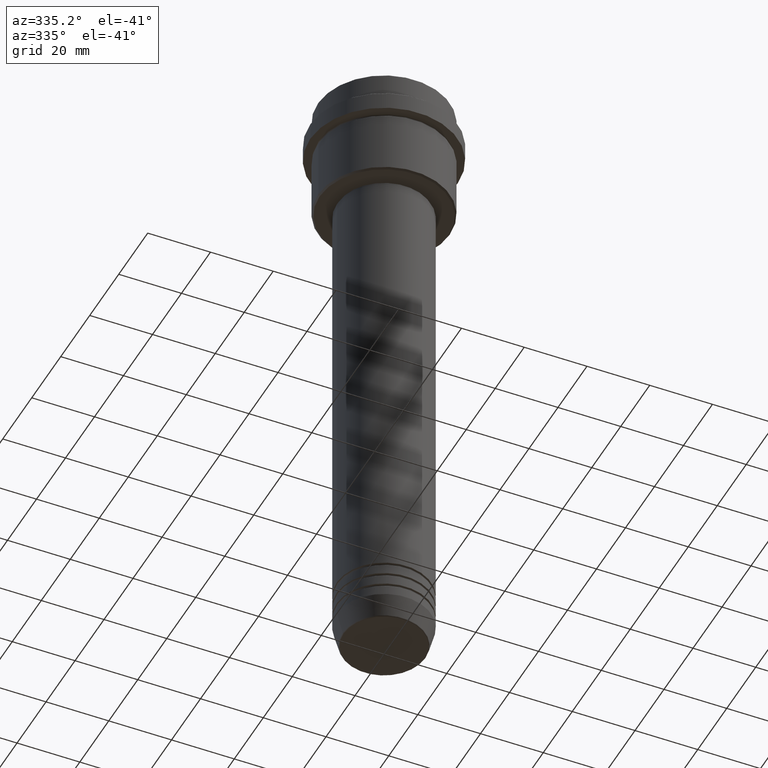
[diagram: clean part render]
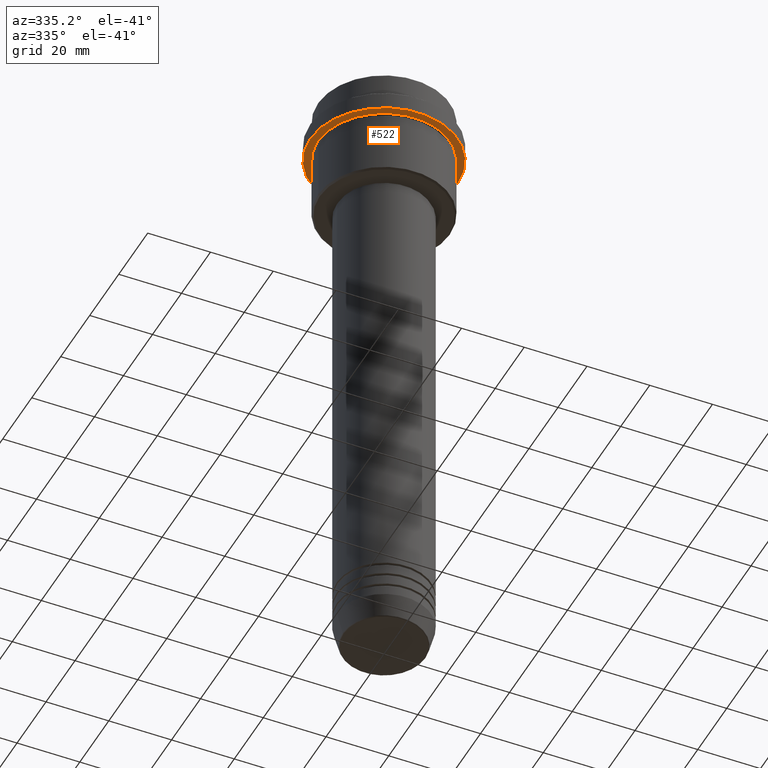
[diagram: same view with one face highlighted and labeled with its STEP entity id]
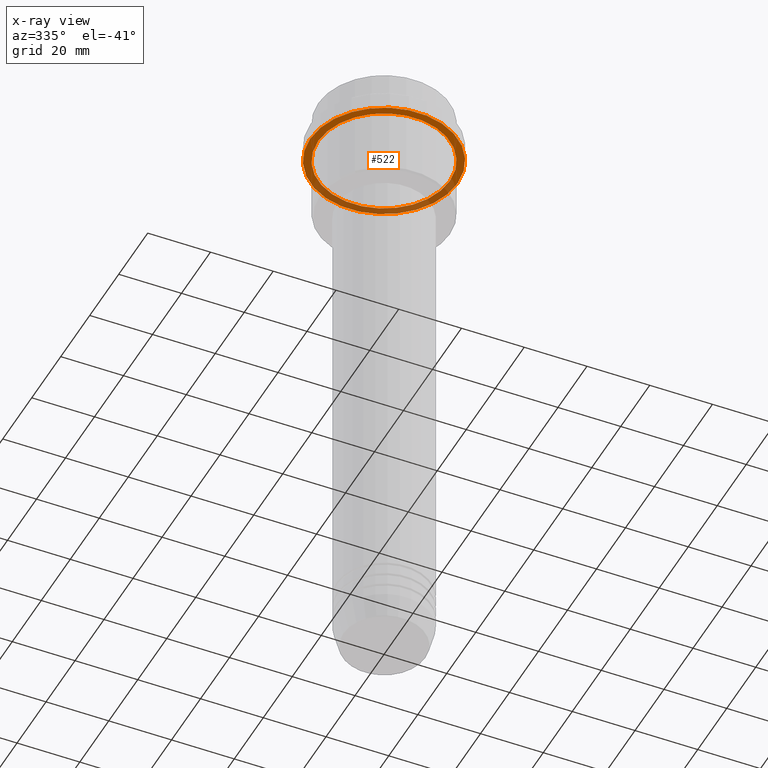
[diagram: x-ray of the same camera — body ghosted, the highlighted face saturated]
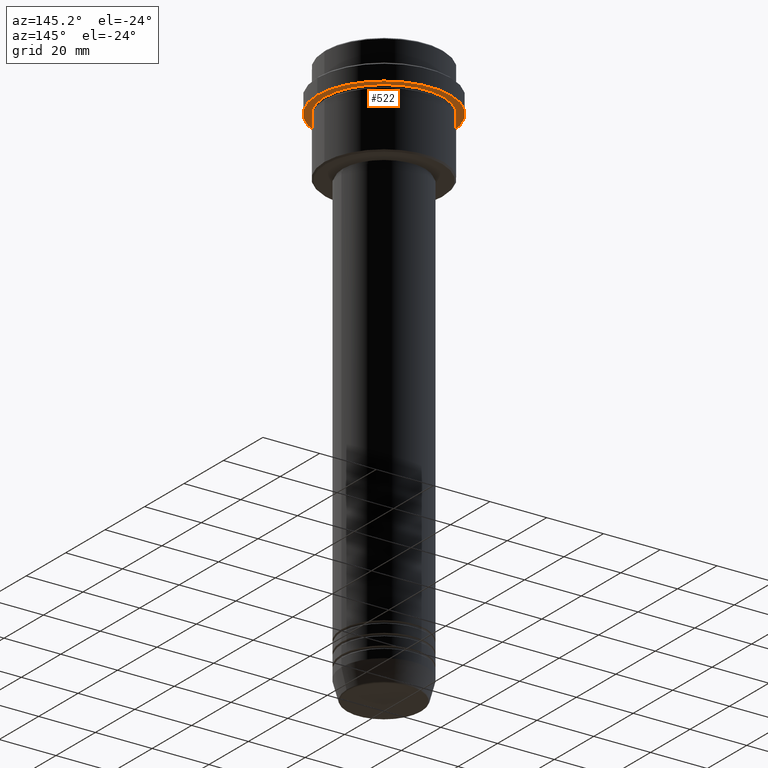
[diagram: same view with one face highlighted and labeled with its STEP entity id]
A machine part, auxiliary view. The second image highlights one B-rep face of the part: STEP entity #522.
The next image is the same camera in x-ray: the body ghosted, the highlighted face saturated — about 36% of this face is hidden behind the body in this view.
A second angle (auxiliary view) of the same face is appended — the face is thin or edge-on in the first view.
In plain terms, the highlighted planar face has unit normal (0, 0, -1).
Its self-contained STEP definition (entity closure, byte-faithful):
#60 = VERTEX_POINT ( 'NONE', #66 ) ;
#66 = CARTESIAN_POINT ( 'NONE',  ( -20.99999999999999289, 0.000000000000000000, -15.00000000000000178 ) ) ;
#109 = VERTEX_POINT ( 'NONE', #369 ) ;
#123 = FACE_OUTER_BOUND ( 'NONE', #1217, .T. ) ;
#190 = DIRECTION ( 'NONE',  ( -1.000000000000000000, 0.000000000000000000, 0.000000000000000000 ) ) ;
#203 = DIRECTION ( 'NONE',  ( -1.000000000000000000, 0.000000000000000000, 0.000000000000000000 ) ) ;
#226 = EDGE_LOOP ( 'NONE', ( #801, #445 ) ) ;
#228 = DIRECTION ( 'NONE',  ( 1.000000000000000000, 0.000000000000000000, 0.000000000000000000 ) ) ;
#272 = CIRCLE ( 'NONE', #692, 20.99999999999999289 ) ;
#359 = AXIS2_PLACEMENT_3D ( 'NONE', #695, #1134, #564 ) ;
#369 = CARTESIAN_POINT ( 'NONE',  ( 20.99999999999999289, 2.571758278209440872E-15, -15.00000000000000178 ) ) ;
#375 = ORIENTED_EDGE ( 'NONE', *, *, #1289, .F. ) ;
#445 = ORIENTED_EDGE ( 'NONE', *, *, #1157, .T. ) ;
#491 = VERTEX_POINT ( 'NONE', #1024 ) ;
#510 = CIRCLE ( 'NONE', #1086, 20.99999999999999289 ) ;
#522 = ADVANCED_FACE ( 'NONE', ( #806, #123 ), #1004, .T. ) ;
#564 = DIRECTION ( 'NONE',  ( -1.000000000000000000, 0.000000000000000000, -0.000000000000000000 ) ) ;
#591 = CARTESIAN_POINT ( 'NONE',  ( -23.50000000000000711, 2.877919977996281109E-15, -15.00000000000000000 ) ) ;
#636 = DIRECTION ( 'NONE',  ( -0.000000000000000000, -0.000000000000000000, 1.000000000000000000 ) ) ;
#638 = EDGE_CURVE ( 'NONE', #60, #109, #510, .T. ) ;
#644 = AXIS2_PLACEMENT_3D ( 'NONE', #964, #636, #867 ) ;
#692 = AXIS2_PLACEMENT_3D ( 'NONE', #1303, #981, #203 ) ;
#695 = CARTESIAN_POINT ( 'NONE',  ( 0.000000000000000000, 23.50000000000000355, -15.00000000000000178 ) ) ;
#755 = CARTESIAN_POINT ( 'NONE',  ( 0.000000000000000000, 0.000000000000000000, -15.00000000000000000 ) ) ;
#801 = ORIENTED_EDGE ( 'NONE', *, *, #638, .T. ) ;
#806 = FACE_BOUND ( 'NONE', #226, .T. ) ;
#835 = EDGE_CURVE ( 'NONE', #1056, #491, #837, .T. ) ;
#837 = CIRCLE ( 'NONE', #1295, 23.50000000000000355 ) ;
#867 = DIRECTION ( 'NONE',  ( 1.000000000000000000, 0.000000000000000000, 0.000000000000000000 ) ) ;
#910 = ORIENTED_EDGE ( 'NONE', *, *, #835, .F. ) ;
#964 = CARTESIAN_POINT ( 'NONE',  ( 0.000000000000000000, 0.000000000000000000, -15.00000000000000000 ) ) ;
#981 = DIRECTION ( 'NONE',  ( -0.000000000000000000, -0.000000000000000000, 1.000000000000000000 ) ) ;
#1004 = PLANE ( 'NONE',  #359 ) ;
#1024 = CARTESIAN_POINT ( 'NONE',  ( 23.50000000000000355, 0.000000000000000000, -15.00000000000000000 ) ) ;
#1056 = VERTEX_POINT ( 'NONE', #591 ) ;
#1086 = AXIS2_PLACEMENT_3D ( 'NONE', #1267, #1147, #190 ) ;
#1091 = CIRCLE ( 'NONE', #644, 23.50000000000000355 ) ;
#1108 = DIRECTION ( 'NONE',  ( -0.000000000000000000, -0.000000000000000000, 1.000000000000000000 ) ) ;
#1134 = DIRECTION ( 'NONE',  ( 0.000000000000000000, 0.000000000000000000, -1.000000000000000000 ) ) ;
#1147 = DIRECTION ( 'NONE',  ( -0.000000000000000000, -0.000000000000000000, 1.000000000000000000 ) ) ;
#1157 = EDGE_CURVE ( 'NONE', #109, #60, #272, .T. ) ;
#1217 = EDGE_LOOP ( 'NONE', ( #375, #910 ) ) ;
#1267 = CARTESIAN_POINT ( 'NONE',  ( 0.000000000000000000, 0.000000000000000000, -15.00000000000000178 ) ) ;
#1289 = EDGE_CURVE ( 'NONE', #491, #1056, #1091, .T. ) ;
#1295 = AXIS2_PLACEMENT_3D ( 'NONE', #755, #1108, #228 ) ;
#1303 = CARTESIAN_POINT ( 'NONE',  ( 0.000000000000000000, 0.000000000000000000, -15.00000000000000178 ) ) ;